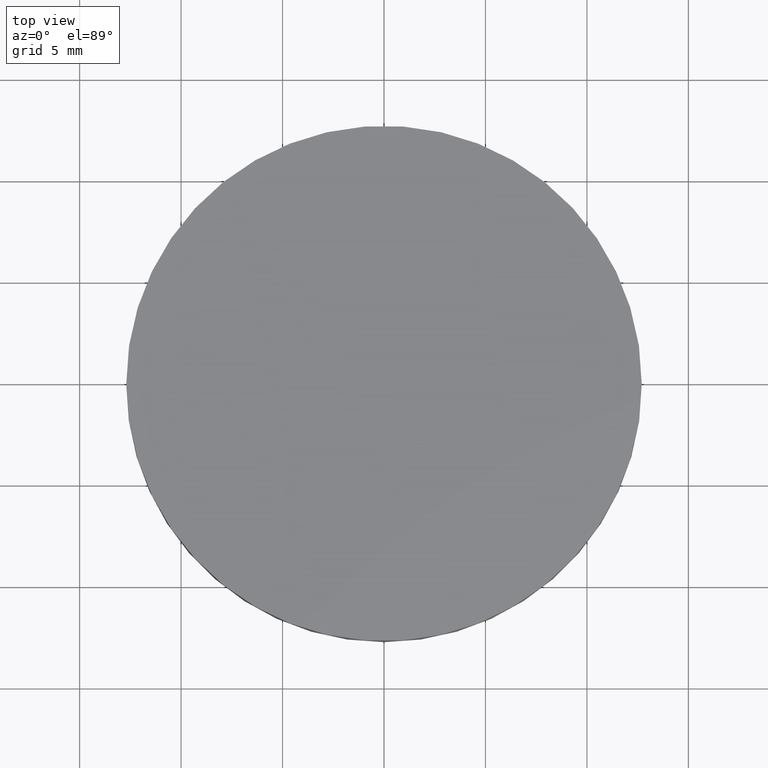
[diagram: clean part render]
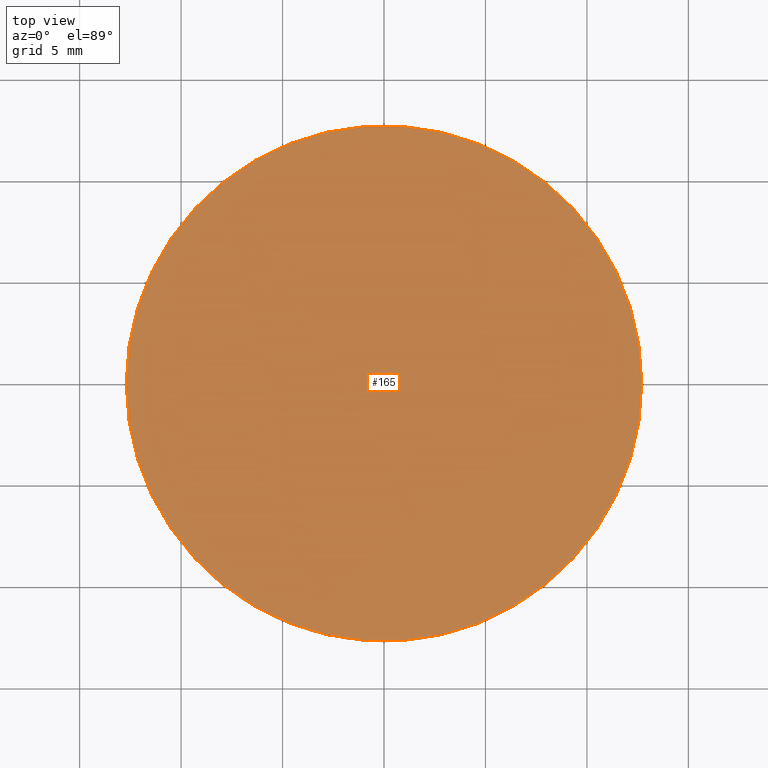
[diagram: same view with one face highlighted and labeled with its STEP entity id]
A machine part, top view. The second image highlights one B-rep face of the part: STEP entity #165.
In plain terms, the highlighted planar face has unit normal (0, 0, 1).
Its self-contained STEP definition (entity closure, byte-faithful):
#14 = DIRECTION ( 'NONE',  ( 0.0000000000000000000, 0.0000000000000000000, 1.000000000000000000 ) ) ;
#35 = AXIS2_PLACEMENT_3D ( 'NONE', #192, #100, #153 ) ;
#39 = DIRECTION ( 'NONE',  ( 1.000000000000000000, 0.0000000000000000000, 0.0000000000000000000 ) ) ;
#59 = FACE_OUTER_BOUND ( 'NONE', #225, .T. ) ;
#61 = EDGE_CURVE ( 'NONE', #191, #89, #148, .T. ) ;
#86 = DIRECTION ( 'NONE',  ( 1.000000000000000000, 0.0000000000000000000, -0.0000000000000000000 ) ) ;
#89 = VERTEX_POINT ( 'NONE', #229 ) ;
#92 = AXIS2_PLACEMENT_3D ( 'NONE', #219, #109, #39 ) ;
#100 = DIRECTION ( 'NONE',  ( -0.0000000000000000000, -0.0000000000000000000, -1.000000000000000000 ) ) ;
#105 = CARTESIAN_POINT ( 'NONE',  ( 0.0000000000000000000, 26.11199999999999800, 3.000000000000000000 ) ) ;
#109 = DIRECTION ( 'NONE',  ( -0.0000000000000000000, -0.0000000000000000000, -1.000000000000000000 ) ) ;
#121 = CARTESIAN_POINT ( 'NONE',  ( -12.69999999999999900, 3.997792089092478900E-015, 3.000000000000000000 ) ) ;
#130 = ORIENTED_EDGE ( 'NONE', *, *, #167, .F. ) ;
#147 = AXIS2_PLACEMENT_3D ( 'NONE', #105, #14, #86 ) ;
#148 = CIRCLE ( 'NONE', #35, 12.69999999999999900 ) ;
#153 = DIRECTION ( 'NONE',  ( 1.000000000000000000, 0.0000000000000000000, 0.0000000000000000000 ) ) ;
#164 = ORIENTED_EDGE ( 'NONE', *, *, #61, .F. ) ;
#165 = ADVANCED_FACE ( 'NONE', ( #59 ), #198, .T. ) ;
#167 = EDGE_CURVE ( 'NONE', #89, #191, #187, .T. ) ;
#187 = CIRCLE ( 'NONE', #92, 12.69999999999999900 ) ;
#191 = VERTEX_POINT ( 'NONE', #121 ) ;
#192 = CARTESIAN_POINT ( 'NONE',  ( 4.996003610813200500E-016, 2.442490654175340100E-015, 3.000000000000000000 ) ) ;
#198 = PLANE ( 'NONE',  #147 ) ;
#219 = CARTESIAN_POINT ( 'NONE',  ( 4.996003610813200500E-016, 2.442490654175340100E-015, 3.000000000000000000 ) ) ;
#225 = EDGE_LOOP ( 'NONE', ( #130, #164 ) ) ;
#229 = CARTESIAN_POINT ( 'NONE',  ( 12.69999999999999900, 2.442490654175340100E-015, 3.000000000000000000 ) ) ;